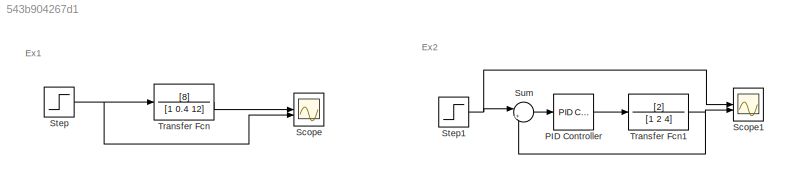
MODEL slx_543b904267d1
KIND model
CONFIG AbsTol = auto
CONFIG EnableMultiTasking = off
CONFIG FixedStep = auto
CONFIG MaxStep = auto
CONFIG MinStep = auto
CONFIG RelTol = 1e-3
CONFIG SampleTimeConstraint = Unconstrained
CONFIG SolverName = VariableStepAuto
CONFIG StartTime = 0.0
CONFIG StopTime = 10
BLOCK [Reference] PID Controller  REF=slpidlib/PID Controller
  LibrarySourceBlock = simulink/Continuous/PID Controller
  SourceBlock = slpidlib/PID Controller
  SourceType = PID 1dof
BLOCK [Scope] Scope
  Floating = off
  NumInputPorts = 2
  ScopeSpecificationString = Simulink.scopes.TimeScopeBlockCfg('CurrentConfiguration', extmgr.ConfigurationSet(extmgr.Configuration('Core','General UI',true),extmgr.Configuration('Core','Source UI',true),extmgr.Configuration('Sources','WiredSimulink',true),extmgr.Configuration('Visuals','Time Domain',true,'SerializedDisplays',{struct('MinYLimReal','-0.15101','MaxYLimReal','1.35912','YLabelReal','','MinYLimMag','0.00000','MaxY...<+2234ch>
BLOCK [Scope] Scope1
  Floating = off
  NumInputPorts = 2
  ScopeSpecificationString = Simulink.scopes.TimeScopeBlockCfg('CurrentConfiguration', extmgr.ConfigurationSet(extmgr.Configuration('Core','General UI',true),extmgr.Configuration('Core','Source UI',true),extmgr.Configuration('Sources','WiredSimulink',true,'DataLoggingVariableName','ScopeData1'),extmgr.Configuration('Visuals','Time Domain',true,'SerializedDisplays',{struct('MinYLimReal','-0.14772','MaxYLimReal','1.32944','YLab...<+2276ch>
BLOCK [Step] Step
  SampleTime = 0
  Time = 0
BLOCK [Step] Step1
  SampleTime = 0
  Time = 0
BLOCK [Sum] Sum
  Inputs = |+-
BLOCK [TransferFcn] Transfer Fcn
  Denominator = [1 0.4 12]
  Numerator = [8]
BLOCK [TransferFcn] Transfer Fcn1
  Denominator = [1 2 4]
  Numerator = [2]
ANNOTATION (root): Ex1
ANNOTATION (root): Ex2
LINE PID Controller:1 -> Transfer Fcn1:1
NET Step1:1 -> Scope1:1, Sum:1
NET Step:1 -> Scope:2, Transfer Fcn:1
LINE Sum:1 -> PID Controller:1
NET Transfer Fcn1:1 -> Scope1:2, Sum:2
LINE Transfer Fcn:1 -> Scope:1
note: NET lines group one-source signal fan-out (src -> all destinations, sorted); 1:1 wires keep LINE
